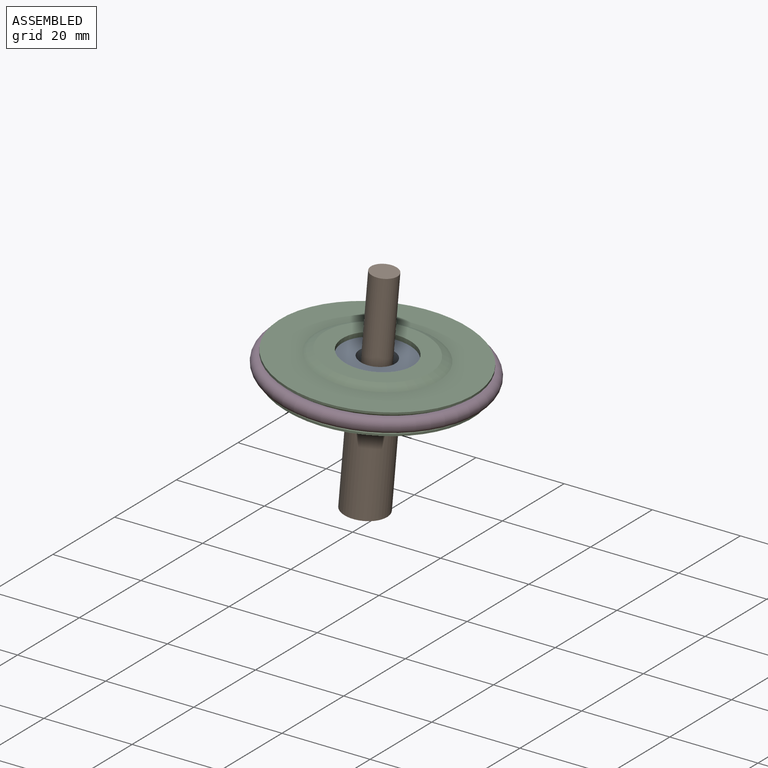
[diagram: assembled view]
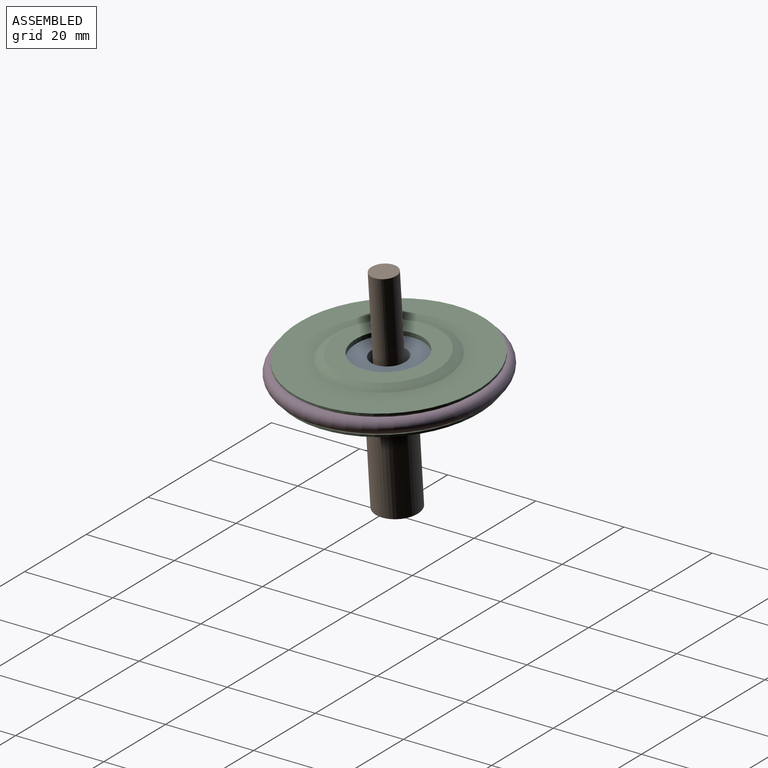
[diagram: assembled view, second angle]
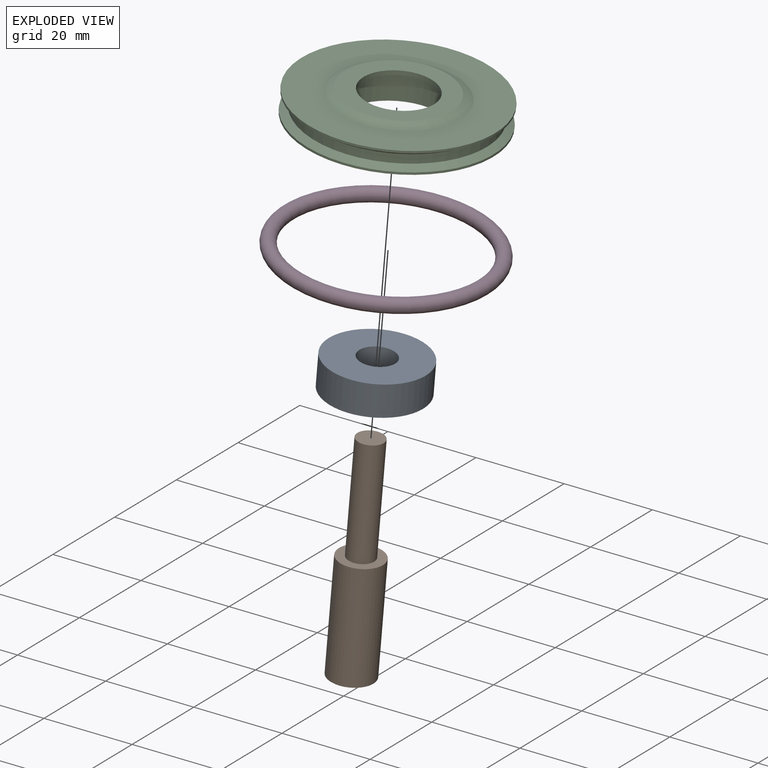
[diagram: exploded view]
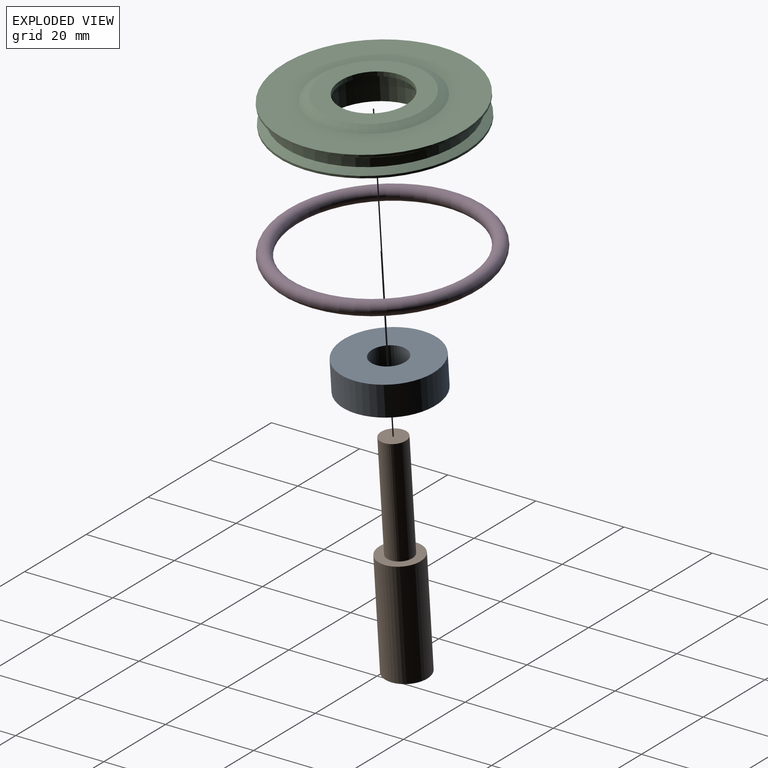
[diagram: exploded view, second angle]
ASSEMBLY  parts=4 mates=3
PART A: 4 faces, bbox 22x22x7 mm
  f0: cylinder r=4.05mm len=8.1mm, axis (0,0,-1), area 178.1mm2, adj f2,f3
  f1: cylinder r=11mm len=22mm, axis (0,0,-1), area 483.8mm2, adj f2,f3
  f2: plane 22x22mm, normal (0,0,1), area 328.6mm2, adj f0,f1
  f3: plane 22x22mm, normal (0,0,-1), area 328.6mm2, adj f0,f1
PART B: 5 faces, bbox 10x10x50 mm
  f0: cylinder r=5mm len=25mm, axis (0,0,-1), area 785.4mm2, adj f1,f2
  f1: plane 10x10mm, normal (0,0,1), area 50.3mm2, adj f0,f3
  f2: plane 10x10mm, normal (0,0,-1), area 78.5mm2, adj f0
  f3: cylinder r=3mm len=25mm, axis (0,0,-1), area 471.2mm2, adj f1,f4
  f4: plane 6x6mm, normal (0,0,1), area 28.3mm2, adj f3
PART C: 15 faces, bbox 8x44x44 mm
  f0: cylinder r=22mm len=44mm, axis (1,0,0), area 69.1mm2, adj f1,f14
  f1: cone r=20.4mm half-angle=58deg, axis (1,0,0), area 251.3mm2, adj f0,f2
  f2: cylinder r=20.4mm len=40.8mm, axis (1,0,0), area 256.4mm2, adj f1,f3
  f3: cone r=22mm half-angle=58deg, axis (-1,0,0), area 251.3mm2, adj f2,f4
  f4: cylinder r=22mm len=44mm, axis (1,0,0), area 69.1mm2, adj f3,f5
  f5: plane 44x44mm, normal (-1,0,0), area 904.8mm2, adj f4,f6
  f6: cone r=12mm half-angle=63.4deg, axis (1,0,0), area 182.6mm2, adj f5,f7
  f7: plane 24x24mm, normal (-1,0,0), area 251.3mm2, adj f6,f8
  f8: cylinder r=8mm len=16mm, axis (1,0,0), area 50.3mm2, adj f7,f9
  f9: plane 22x22mm, normal (1,0,0), area 179.1mm2, adj f8,f10
  f10: cylinder r=11mm len=22mm, axis (1,0,0), area 483.8mm2, adj f9,f11
  f11: plane 26x26mm, normal (1,0,0), area 150.8mm2, adj f10,f12
  f12: cone r=14mm half-angle=45deg, axis (-1,0,0), area 120mm2, adj f11,f13
  f13: cylinder r=14mm len=28mm, axis (1,0,0), area 88mm2, adj f12,f14
  f14: plane 44x44mm, normal (1,0,0), area 904.8mm2, adj f0,f13
PART D: 1 faces, bbox 3.2x51.1x51.1 mm
  f0: torus R=22mm, axis (1,0,0), area 1389.6mm2
PLACE A rot(axis=(-0.04,0.04,-1),90.1deg) t=(-16.72,5.36,-6.21)mm
PLACE B rot(axis=(0,1,0),5deg) t=(-18.9,5.36,-31.12)mm
PLACE C rot(axis=(-0.54,0.59,0.59),122.9deg) t=(-16.33,5.36,-1.73)mm
PLACE D rot(axis=(0.68,0,-0.74),180deg) t=(-16.33,5.36,-1.73)mm
MATE fastened D.f0 <-> C.f0  axis (-0.09,0,-1) through (-16.33,5.36,-1.73)mm
MATE fastened A.f1 <-> B.f0  axis (-0.09,0,-1) through (-16.72,5.36,-6.21)mm
MATE fastened A.f1 <-> C.f0  axis (0.09,0,1) through (-16.11,5.36,0.76)mm
